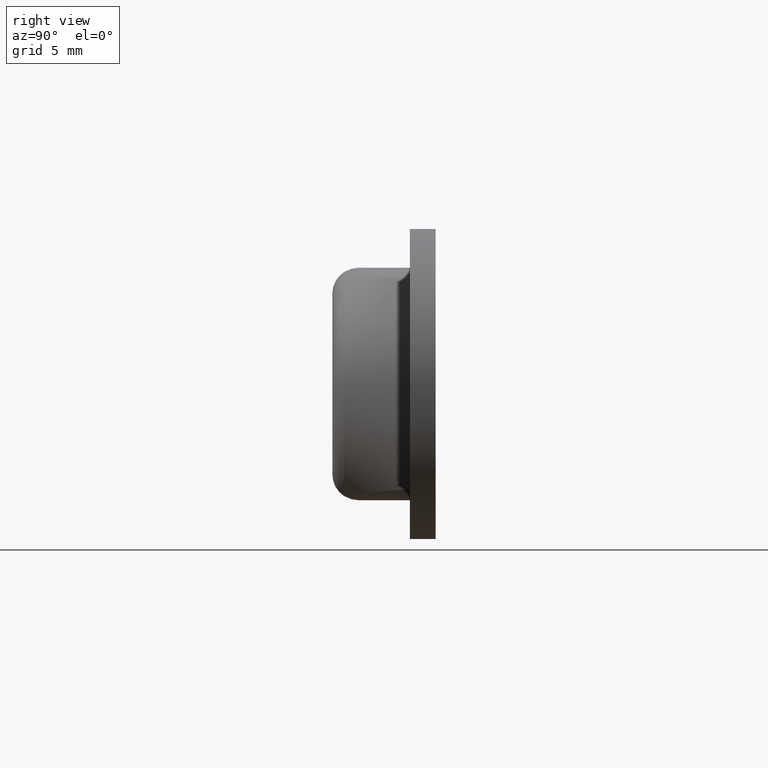
[diagram: clean part render]
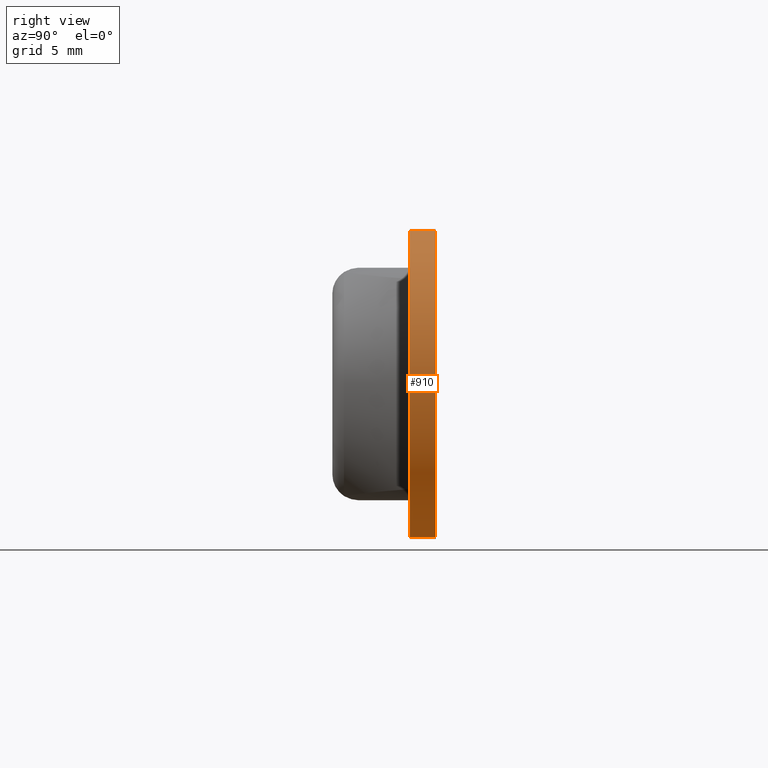
[diagram: same view with one face highlighted and labeled with its STEP entity id]
A machine part, right view. The second image highlights one B-rep face of the part: STEP entity #910.
In plain terms, the highlighted cylindrical surface (partial cylindrical patch) has radius 10 mm, axis along (0, 1, 0).
Its self-contained STEP definition (entity closure, byte-faithful):
#132 = DIRECTION ( 'NONE',  ( 0.0000000000000000000, 1.000000000000000000, 0.0000000000000000000 ) ) ;
#133 = CARTESIAN_POINT ( 'NONE',  ( 13.58122847290865900, -1.500000000000170100, -8.888888888888889300 ) ) ;
#138 = ORIENTED_EDGE ( 'NONE', *, *, #672, .T. ) ;
#189 = CARTESIAN_POINT ( 'NONE',  ( 13.58122847290865900, 0.0000000000000000000, 8.888888888888889300 ) ) ;
#257 = DIRECTION ( 'NONE',  ( 0.0000000000000000000, -1.000000000000000000, 0.0000000000000000000 ) ) ;
#302 = EDGE_CURVE ( 'NONE', #1307, #836, #1163, .T. ) ;
#310 = DIRECTION ( 'NONE',  ( 0.0000000000000000000, 0.0000000000000000000, 1.000000000000000000 ) ) ;
#321 = LINE ( 'NONE', #1203, #871 ) ;
#338 = DIRECTION ( 'NONE',  ( 0.0000000000000000000, -1.000000000000000000, 0.0000000000000000000 ) ) ;
#404 = CARTESIAN_POINT ( 'NONE',  ( 13.58122847290865900, 0.0000000000000000000, -8.888888888888889300 ) ) ;
#439 = DIRECTION ( 'NONE',  ( 0.0000000000000000000, 1.000000000000000000, 0.0000000000000000000 ) ) ;
#458 = CARTESIAN_POINT ( 'NONE',  ( 13.58122847290865900, -1.500000000000170100, 8.888888888888889300 ) ) ;
#466 = AXIS2_PLACEMENT_3D ( 'NONE', #660, #439, #310 ) ;
#517 = EDGE_LOOP ( 'NONE', ( #722, #1023, #138, #609 ) ) ;
#538 = DIRECTION ( 'NONE',  ( -0.0000000000000000000, -1.000000000000000000, -0.0000000000000000000 ) ) ;
#559 = VERTEX_POINT ( 'NONE', #189 ) ;
#609 = ORIENTED_EDGE ( 'NONE', *, *, #1193, .T. ) ;
#660 = CARTESIAN_POINT ( 'NONE',  ( 9.000000000000149200, -1000.000000000000000, 0.0000000000000000000 ) ) ;
#672 = EDGE_CURVE ( 'NONE', #836, #559, #1410, .T. ) ;
#691 = DIRECTION ( 'NONE',  ( 0.0000000000000000000, 0.0000000000000000000, -1.000000000000000000 ) ) ;
#702 = CARTESIAN_POINT ( 'NONE',  ( 9.000000000000149200, 0.0000000000000000000, 0.0000000000000000000 ) ) ;
#722 = ORIENTED_EDGE ( 'NONE', *, *, #1449, .F. ) ;
#730 = CIRCLE ( 'NONE', #796, 10.00000000000000000 ) ;
#789 = FACE_OUTER_BOUND ( 'NONE', #517, .T. ) ;
#796 = AXIS2_PLACEMENT_3D ( 'NONE', #1000, #338, #1116 ) ;
#836 = VERTEX_POINT ( 'NONE', #404 ) ;
#871 = VECTOR ( 'NONE', #538, 1000.000000000000000 ) ;
#910 = ADVANCED_FACE ( 'NONE', ( #789 ), #1313, .T. ) ;
#929 = VECTOR ( 'NONE', #132, 1000.000000000000000 ) ;
#1000 = CARTESIAN_POINT ( 'NONE',  ( 9.000000000000149200, -1.500000000000170100, 0.0000000000000000000 ) ) ;
#1023 = ORIENTED_EDGE ( 'NONE', *, *, #302, .T. ) ;
#1116 = DIRECTION ( 'NONE',  ( 0.0000000000000000000, 0.0000000000000000000, -1.000000000000000000 ) ) ;
#1163 = LINE ( 'NONE', #1389, #929 ) ;
#1193 = EDGE_CURVE ( 'NONE', #559, #1237, #321, .T. ) ;
#1203 = CARTESIAN_POINT ( 'NONE',  ( 13.58122847290865900, -1000.000000000000000, 8.888888888888889300 ) ) ;
#1237 = VERTEX_POINT ( 'NONE', #458 ) ;
#1307 = VERTEX_POINT ( 'NONE', #133 ) ;
#1313 = CYLINDRICAL_SURFACE ( 'NONE', #466, 10.00000000000000000 ) ;
#1378 = AXIS2_PLACEMENT_3D ( 'NONE', #702, #257, #691 ) ;
#1389 = CARTESIAN_POINT ( 'NONE',  ( 13.58122847290865900, -1000.000000000000000, -8.888888888888889300 ) ) ;
#1410 = CIRCLE ( 'NONE', #1378, 10.00000000000000000 ) ;
#1449 = EDGE_CURVE ( 'NONE', #1307, #1237, #730, .T. ) ;